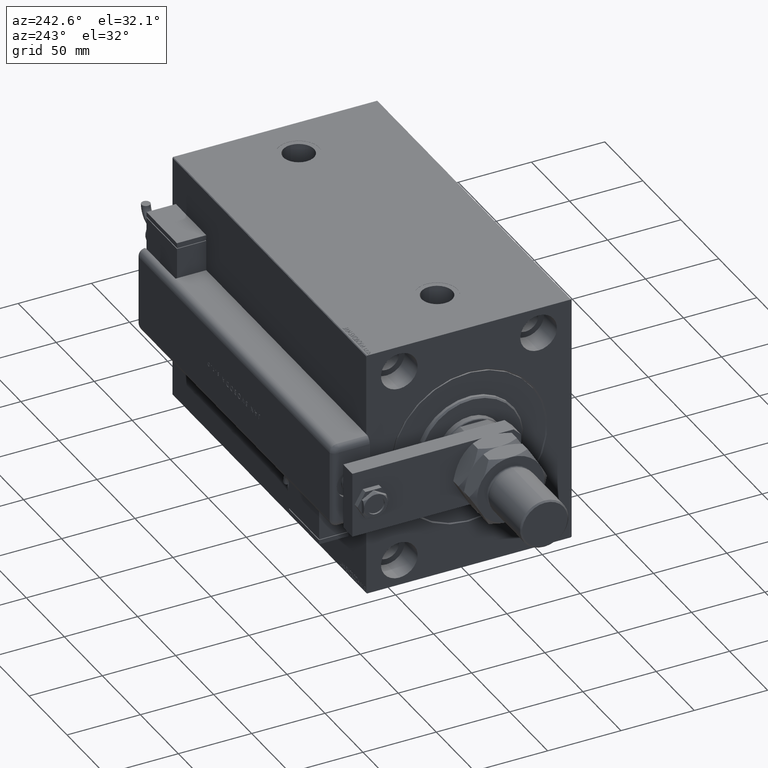
[diagram: clean part render]
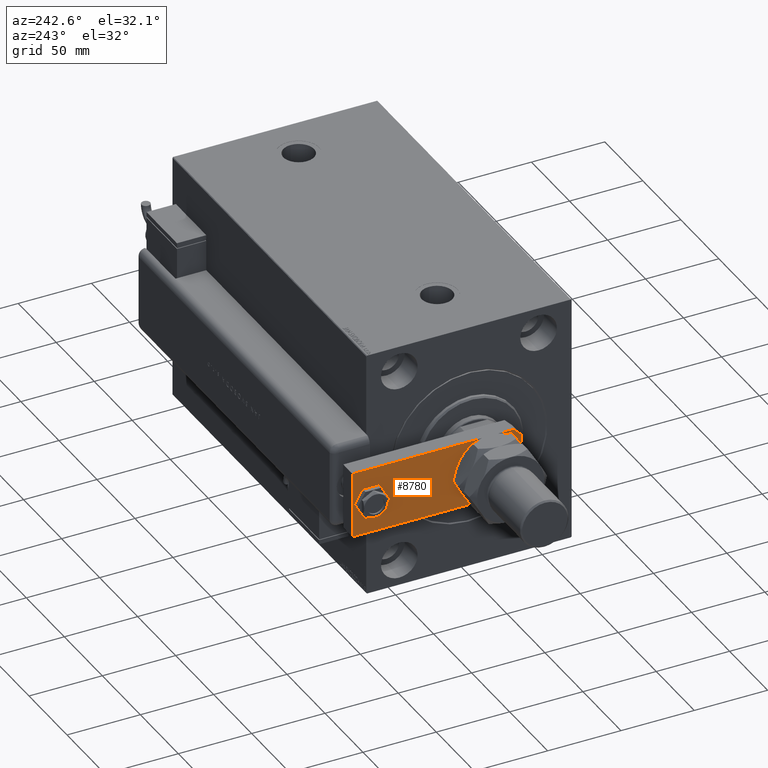
[diagram: same view with one face highlighted and labeled with its STEP entity id]
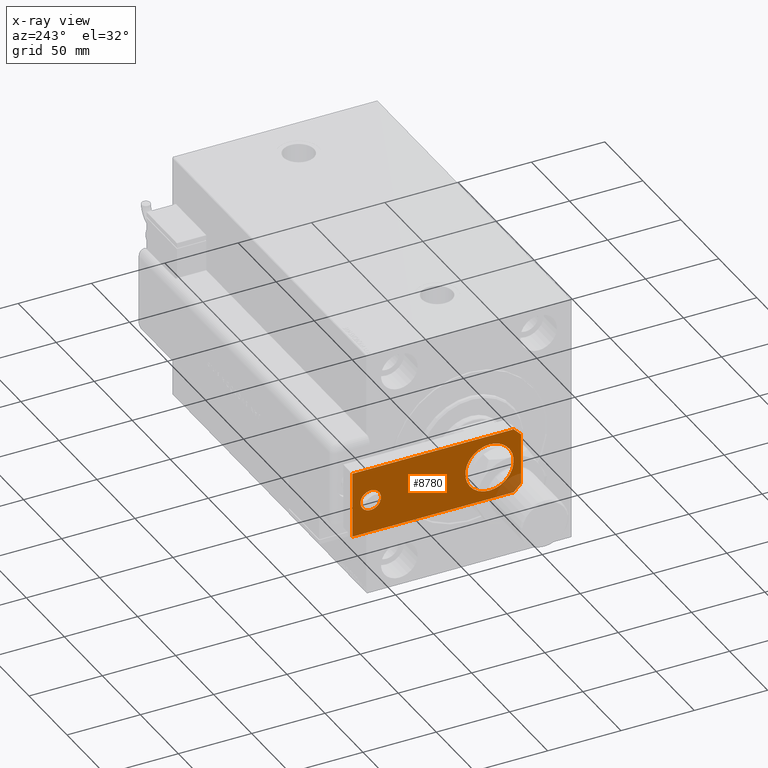
[diagram: x-ray of the same camera — body ghosted, the highlighted face saturated]
A machine part, auxiliary view. The second image highlights one B-rep face of the part: STEP entity #8780.
The next image is the same camera in x-ray: the body ghosted, the highlighted face saturated — about 4% of this face is hidden behind the body in this view.
In plain terms, the highlighted planar face has unit normal (1, 0, -0).
Its self-contained STEP definition (entity closure, byte-faithful):
#244 = DIRECTION ( 'NONE',  ( -6.033820786006285224E-17, -1.000000000000000000, 0.000000000000000000 ) ) ;
#961 = EDGE_LOOP ( 'NONE', ( #46203, #36168 ) ) ;
#1553 = VECTOR ( 'NONE', #244, 1000.000000000000000 ) ;
#2274 = CARTESIAN_POINT ( 'NONE',  ( 1.963948872468190046E-17, 102.5000000000000142, 0.000000000000000000 ) ) ;
#2796 = VERTEX_POINT ( 'NONE', #44115 ) ;
#3576 = DIRECTION ( 'NONE',  ( -9.050731179009427836E-17, 1.000000000000000000, 0.000000000000000000 ) ) ;
#3684 = CIRCLE ( 'NONE', #27526, 7.000000000000000000 ) ;
#4075 = VERTEX_POINT ( 'NONE', #25794 ) ;
#4098 = ORIENTED_EDGE ( 'NONE', *, *, #28315, .F. ) ;
#4730 = VERTEX_POINT ( 'NONE', #46102 ) ;
#5098 = ORIENTED_EDGE ( 'NONE', *, *, #9221, .T. ) ;
#7042 = DIRECTION ( 'NONE',  ( -1.000000000000000000, 0.000000000000000000, 0.000000000000000000 ) ) ;
#8540 = FACE_OUTER_BOUND ( 'NONE', #56915, .T. ) ;
#8780 = ADVANCED_FACE ( 'NONE', ( #8540, #60531, #18177 ), #31576, .F. ) ;
#9198 = EDGE_CURVE ( 'NONE', #16998, #4075, #32728, .T. ) ;
#9221 = EDGE_CURVE ( 'NONE', #40961, #2796, #3684, .T. ) ;
#10314 = CARTESIAN_POINT ( 'NONE',  ( 1.963948872468190046E-17, 102.5000000000000142, 0.000000000000000000 ) ) ;
#14209 = DIRECTION ( 'NONE',  ( -0.7071067811865493491, -0.7071067811865455743, -0.000000000000000000 ) ) ;
#14370 = DIRECTION ( 'NONE',  ( 1.000000000000000000, 0.000000000000000000, 0.000000000000000000 ) ) ;
#16164 = EDGE_CURVE ( 'NONE', #34875, #49870, #39639, .T. ) ;
#16998 = VERTEX_POINT ( 'NONE', #37276 ) ;
#18177 = FACE_BOUND ( 'NONE', #961, .T. ) ;
#18373 = AXIS2_PLACEMENT_3D ( 'NONE', #2274, #43999, #35579 ) ;
#20126 = CARTESIAN_POINT ( 'NONE',  ( 0.000000000000000000, 21.50000000000000355, 0.000000000000000000 ) ) ;
#20948 = AXIS2_PLACEMENT_3D ( 'NONE', #21174, #40161, #59155 ) ;
#21009 = EDGE_CURVE ( 'NONE', #54346, #34102, #51864, .T. ) ;
#21174 = CARTESIAN_POINT ( 'NONE',  ( 0.000000000000000000, 21.50000000000000355, 0.000000000000000000 ) ) ;
#21352 = LINE ( 'NONE', #49693, #39097 ) ;
#21818 = VERTEX_POINT ( 'NONE', #44747 ) ;
#21917 = CARTESIAN_POINT ( 'NONE',  ( -22.50000000000001066, 0.000000000000000000, 0.000000000000000000 ) ) ;
#22373 = EDGE_LOOP ( 'NONE', ( #5098, #31990 ) ) ;
#23730 = AXIS2_PLACEMENT_3D ( 'NONE', #20126, #48474, #38819 ) ;
#24268 = ORIENTED_EDGE ( 'NONE', *, *, #9198, .T. ) ;
#25666 = EDGE_CURVE ( 'NONE', #49870, #34875, #47812, .T. ) ;
#25794 = CARTESIAN_POINT ( 'NONE',  ( -22.50000000000001066, 5.000000000000031974, 0.000000000000000000 ) ) ;
#26269 = LINE ( 'NONE', #21917, #52921 ) ;
#27526 = AXIS2_PLACEMENT_3D ( 'NONE', #10314, #38011, #14370 ) ;
#28315 = EDGE_CURVE ( 'NONE', #16998, #34102, #26269, .T. ) ;
#31576 = PLANE ( 'NONE',  #35435 ) ;
#31990 = ORIENTED_EDGE ( 'NONE', *, *, #38875, .T. ) ;
#32728 = LINE ( 'NONE', #61060, #42315 ) ;
#32814 = CARTESIAN_POINT ( 'NONE',  ( 16.50000000000000000, 21.50000000000000711, 0.000000000000000000 ) ) ;
#34102 = VERTEX_POINT ( 'NONE', #61267 ) ;
#34463 = CARTESIAN_POINT ( 'NONE',  ( -7.000000000000000000, 102.5000000000000142, 0.000000000000000000 ) ) ;
#34875 = VERTEX_POINT ( 'NONE', #32814 ) ;
#35435 = AXIS2_PLACEMENT_3D ( 'NONE', #42140, #50877, #55857 ) ;
#35579 = DIRECTION ( 'NONE',  ( 1.000000000000000000, 0.000000000000000000, 0.000000000000000000 ) ) ;
#36168 = ORIENTED_EDGE ( 'NONE', *, *, #16164, .T. ) ;
#37276 = CARTESIAN_POINT ( 'NONE',  ( -17.50000000000000355, 0.000000000000000000, 0.000000000000000000 ) ) ;
#37854 = EDGE_CURVE ( 'NONE', #54346, #21818, #55251, .T. ) ;
#38011 = DIRECTION ( 'NONE',  ( 0.000000000000000000, 0.000000000000000000, 1.000000000000000000 ) ) ;
#38228 = CARTESIAN_POINT ( 'NONE',  ( -16.50000000000000000, 21.50000000000000355, 0.000000000000000000 ) ) ;
#38593 = CARTESIAN_POINT ( 'NONE',  ( 22.50000000000001066, 5.000000000000003553, 0.000000000000000000 ) ) ;
#38641 = ORIENTED_EDGE ( 'NONE', *, *, #37854, .F. ) ;
#38819 = DIRECTION ( 'NONE',  ( 1.000000000000000000, 0.000000000000000000, 0.000000000000000000 ) ) ;
#38875 = EDGE_CURVE ( 'NONE', #2796, #40961, #45201, .T. ) ;
#39097 = VECTOR ( 'NONE', #7042, 1000.000000000000000 ) ;
#39639 = CIRCLE ( 'NONE', #23730, 16.50000000000000000 ) ;
#39777 = EDGE_CURVE ( 'NONE', #4730, #4075, #47845, .T. ) ;
#40161 = DIRECTION ( 'NONE',  ( 0.000000000000000000, 0.000000000000000000, 1.000000000000000000 ) ) ;
#40961 = VERTEX_POINT ( 'NONE', #34463 ) ;
#42140 = CARTESIAN_POINT ( 'NONE',  ( 0.000000000000000000, 0.000000000000000000, 0.000000000000000000 ) ) ;
#42315 = VECTOR ( 'NONE', #57337, 1000.000000000000114 ) ;
#43999 = DIRECTION ( 'NONE',  ( 0.000000000000000000, 0.000000000000000000, 1.000000000000000000 ) ) ;
#44115 = CARTESIAN_POINT ( 'NONE',  ( 7.000000000000000000, 102.5000000000000142, 0.000000000000000000 ) ) ;
#44747 = CARTESIAN_POINT ( 'NONE',  ( 22.50000000000000000, 115.0000000000000000, 0.000000000000000000 ) ) ;
#45201 = CIRCLE ( 'NONE', #18373, 7.000000000000000000 ) ;
#45268 = DIRECTION ( 'NONE',  ( 1.000000000000000000, 0.000000000000000000, 0.000000000000000000 ) ) ;
#46102 = CARTESIAN_POINT ( 'NONE',  ( -22.50000000000000355, 115.0000000000000000, 0.000000000000000000 ) ) ;
#46203 = ORIENTED_EDGE ( 'NONE', *, *, #25666, .T. ) ;
#47542 = CARTESIAN_POINT ( 'NONE',  ( -22.50000000000000355, 115.0000000000000000, 0.000000000000000000 ) ) ;
#47812 = CIRCLE ( 'NONE', #20948, 16.50000000000000000 ) ;
#47845 = LINE ( 'NONE', #47542, #1553 ) ;
#48474 = DIRECTION ( 'NONE',  ( 0.000000000000000000, 0.000000000000000000, 1.000000000000000000 ) ) ;
#49308 = VECTOR ( 'NONE', #3576, 1000.000000000000000 ) ;
#49693 = CARTESIAN_POINT ( 'NONE',  ( 22.50000000000000000, 115.0000000000000000, 0.000000000000000000 ) ) ;
#49870 = VERTEX_POINT ( 'NONE', #38228 ) ;
#50877 = DIRECTION ( 'NONE',  ( -0.000000000000000000, 0.000000000000000000, 1.000000000000000000 ) ) ;
#51732 = EDGE_CURVE ( 'NONE', #21818, #4730, #21352, .T. ) ;
#51864 = LINE ( 'NONE', #52794, #54740 ) ;
#52794 = CARTESIAN_POINT ( 'NONE',  ( 22.50000000000001066, 5.000000000000004441, 0.000000000000000000 ) ) ;
#52921 = VECTOR ( 'NONE', #45268, 1000.000000000000000 ) ;
#54346 = VERTEX_POINT ( 'NONE', #38593 ) ;
#54740 = VECTOR ( 'NONE', #14209, 1000.000000000000114 ) ;
#54851 = ORIENTED_EDGE ( 'NONE', *, *, #39777, .F. ) ;
#55251 = LINE ( 'NONE', #56169, #49308 ) ;
#55857 = DIRECTION ( 'NONE',  ( 1.000000000000000000, 0.000000000000000000, 0.000000000000000000 ) ) ;
#56169 = CARTESIAN_POINT ( 'NONE',  ( 22.50000000000001066, 0.000000000000000000, 0.000000000000000000 ) ) ;
#56526 = ORIENTED_EDGE ( 'NONE', *, *, #21009, .T. ) ;
#56915 = EDGE_LOOP ( 'NONE', ( #4098, #24268, #54851, #59948, #38641, #56526 ) ) ;
#57337 = DIRECTION ( 'NONE',  ( -0.7071067811865455743, 0.7071067811865493491, -0.000000000000000000 ) ) ;
#59155 = DIRECTION ( 'NONE',  ( 1.000000000000000000, 0.000000000000000000, 0.000000000000000000 ) ) ;
#59948 = ORIENTED_EDGE ( 'NONE', *, *, #51732, .F. ) ;
#60531 = FACE_BOUND ( 'NONE', #22373, .T. ) ;
#61060 = CARTESIAN_POINT ( 'NONE',  ( -17.50000000000000355, 0.000000000000000000, 0.000000000000000000 ) ) ;
#61267 = CARTESIAN_POINT ( 'NONE',  ( 17.49999999999997868, 0.000000000000000000, 0.000000000000000000 ) ) ;